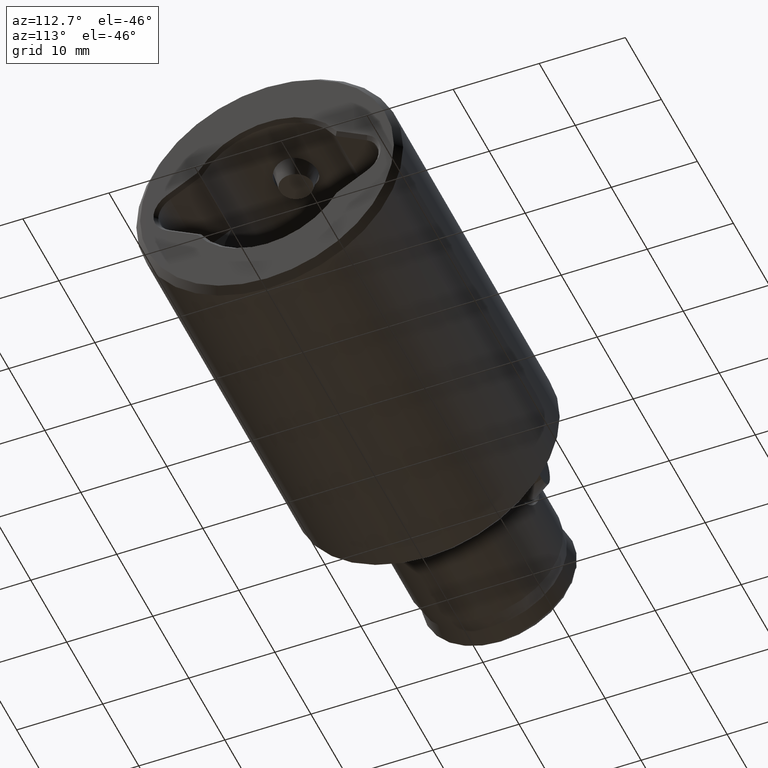
[diagram: clean part render]
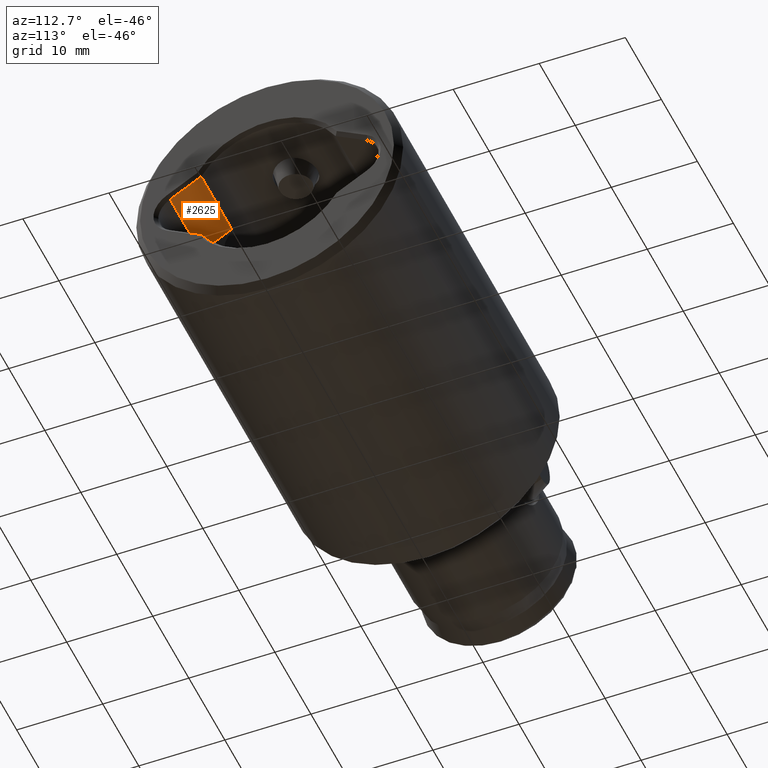
[diagram: same view with one face highlighted and labeled with its STEP entity id]
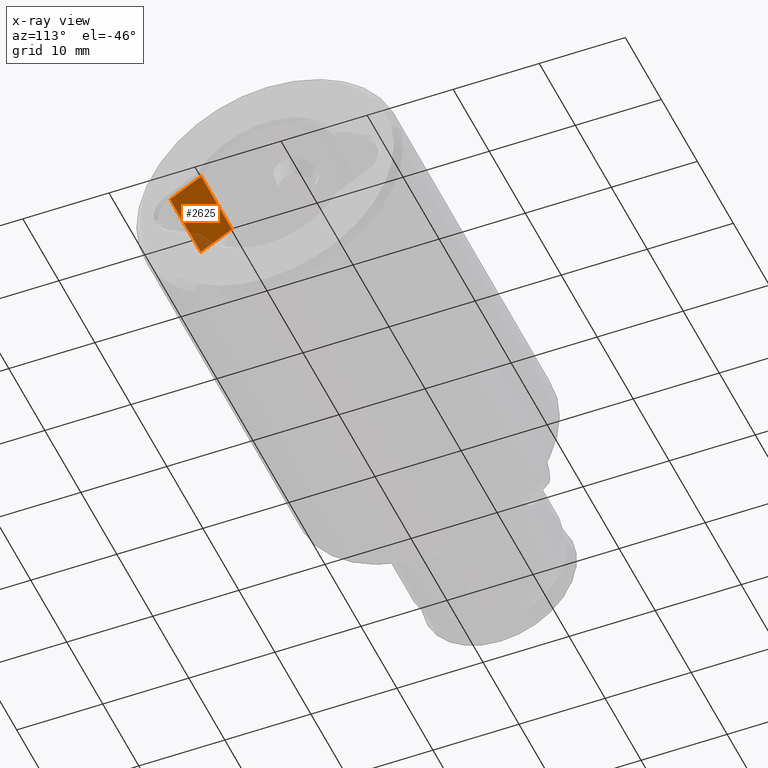
[diagram: x-ray of the same camera — body ghosted, the highlighted face saturated]
A machine part, auxiliary view. The second image highlights one B-rep face of the part: STEP entity #2625.
The next image is the same camera in x-ray: the body ghosted, the highlighted face saturated — about 9% of this face is hidden behind the body in this view.
In plain terms, the highlighted planar face has unit normal (-0, -0.5, 0.866).
Its self-contained STEP definition (entity closure, byte-faithful):
#13 = DIRECTION ( 'NONE',  ( 1.888135635086342558E-20, -1.723881454251955994E-16, 1.000000000000000000 ) ) ;
#102 = CARTESIAN_POINT ( 'NONE',  ( 4.466776591201025326, -7.813315997980588179, 0.4000000000000023537 ) ) ;
#239 = DIRECTION ( 'NONE',  ( 0.8660254037844378194, -0.5000000000000014433, 8.621042444685535257E-17 ) ) ;
#465 = DIRECTION ( 'NONE',  ( -0.5000000000000014433, -0.8660254037844378194, 1.492830725713291689E-16 ) ) ;
#496 = AXIS2_PLACEMENT_3D ( 'NONE', #2399, #239, #2760 ) ;
#532 = ORIENTED_EDGE ( 'NONE', *, *, #840, .F. ) ;
#682 = VECTOR ( 'NONE', #465, 999.9999999999998863 ) ;
#840 = EDGE_CURVE ( 'NONE', #3104, #4299, #3899, .T. ) ;
#1022 = ORIENTED_EDGE ( 'NONE', *, *, #4218, .F. ) ;
#1075 = CARTESIAN_POINT ( 'NONE',  ( 2.381569860407210193, -11.42500000000004512, 0.4000000000000030198 ) ) ;
#1093 = CARTESIAN_POINT ( 'NONE',  ( 4.466776591201025326, -7.813315997980588179, 22.00000000000000000 ) ) ;
#1170 = EDGE_CURVE ( 'NONE', #4546, #4587, #2075, .T. ) ;
#1506 = CARTESIAN_POINT ( 'NONE',  ( 2.381569860407208417, -11.42500000000004334, 8.900000000000000355 ) ) ;
#1822 = CARTESIAN_POINT ( 'NONE',  ( 4.466776591201026214, -7.813315997980586403, 8.900000000000000355 ) ) ;
#1898 = DIRECTION ( 'NONE',  ( -1.888135635086342558E-20, 1.723881454251955994E-16, -1.000000000000000000 ) ) ;
#2075 = LINE ( 'NONE', #2585, #2749 ) ;
#2158 = CARTESIAN_POINT ( 'NONE',  ( 2.381569860407210193, -11.42500000000004512, 8.900000000000000355 ) ) ;
#2334 = VECTOR ( 'NONE', #1898, 1000.000000000000000 ) ;
#2399 = CARTESIAN_POINT ( 'NONE',  ( 2.381569860407208417, -11.42500000000004334, 8.900000000000000355 ) ) ;
#2512 = FACE_OUTER_BOUND ( 'NONE', #4359, .T. ) ;
#2585 = CARTESIAN_POINT ( 'NONE',  ( 2.381569860407208417, -11.42500000000004334, 0.4000000000000030198 ) ) ;
#2615 = CARTESIAN_POINT ( 'NONE',  ( 2.381569860407210193, -11.42500000000004512, 8.900000000000000355 ) ) ;
#2625 = ADVANCED_FACE ( 'NONE', ( #2512 ), #4522, .F. ) ;
#2749 = VECTOR ( 'NONE', #2981, 999.9999999999998863 ) ;
#2760 = DIRECTION ( 'NONE',  ( 0.5000000000000014433, 0.8660254037844378194, -1.492830725713291689E-16 ) ) ;
#2910 = VECTOR ( 'NONE', #13, 1000.000000000000000 ) ;
#2954 = ORIENTED_EDGE ( 'NONE', *, *, #1170, .T. ) ;
#2981 = DIRECTION ( 'NONE',  ( -0.5000000000000014433, -0.8660254037844378194, 1.492830725713291689E-16 ) ) ;
#3104 = VERTEX_POINT ( 'NONE', #1822 ) ;
#3277 = ORIENTED_EDGE ( 'NONE', *, *, #3421, .F. ) ;
#3421 = EDGE_CURVE ( 'NONE', #4546, #3104, #3726, .T. ) ;
#3726 = LINE ( 'NONE', #1093, #2910 ) ;
#3899 = LINE ( 'NONE', #1506, #682 ) ;
#4218 = EDGE_CURVE ( 'NONE', #4299, #4587, #4274, .T. ) ;
#4274 = LINE ( 'NONE', #2158, #2334 ) ;
#4299 = VERTEX_POINT ( 'NONE', #2615 ) ;
#4359 = EDGE_LOOP ( 'NONE', ( #3277, #2954, #1022, #532 ) ) ;
#4522 = PLANE ( 'NONE',  #496 ) ;
#4546 = VERTEX_POINT ( 'NONE', #102 ) ;
#4587 = VERTEX_POINT ( 'NONE', #1075 ) ;